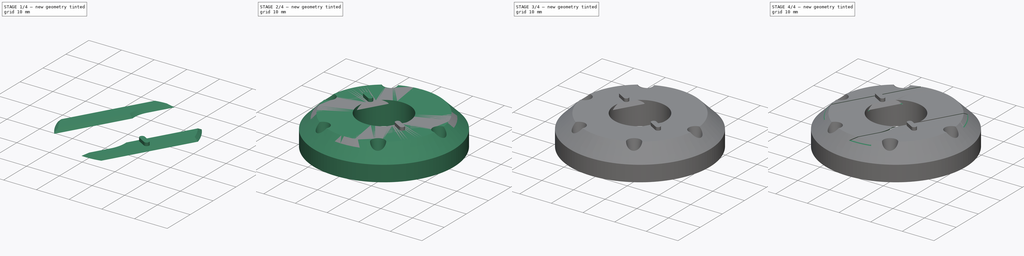
[diagram: build sequence overview — one tinted view per stage of 4, left to right]
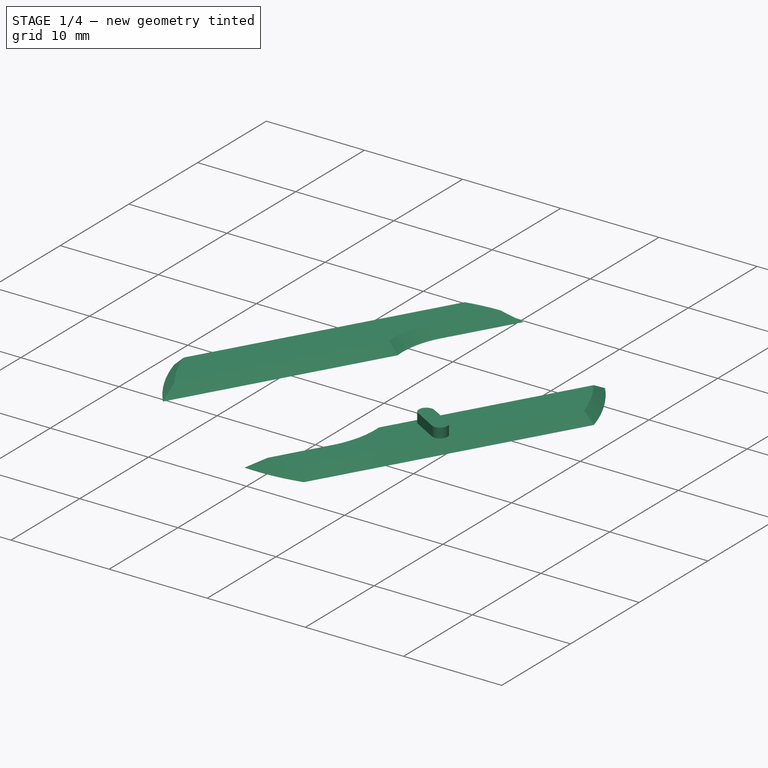
[diagram: stage 1 of 4 — iso view after this stage's code; geometry added in this stage tinted green]
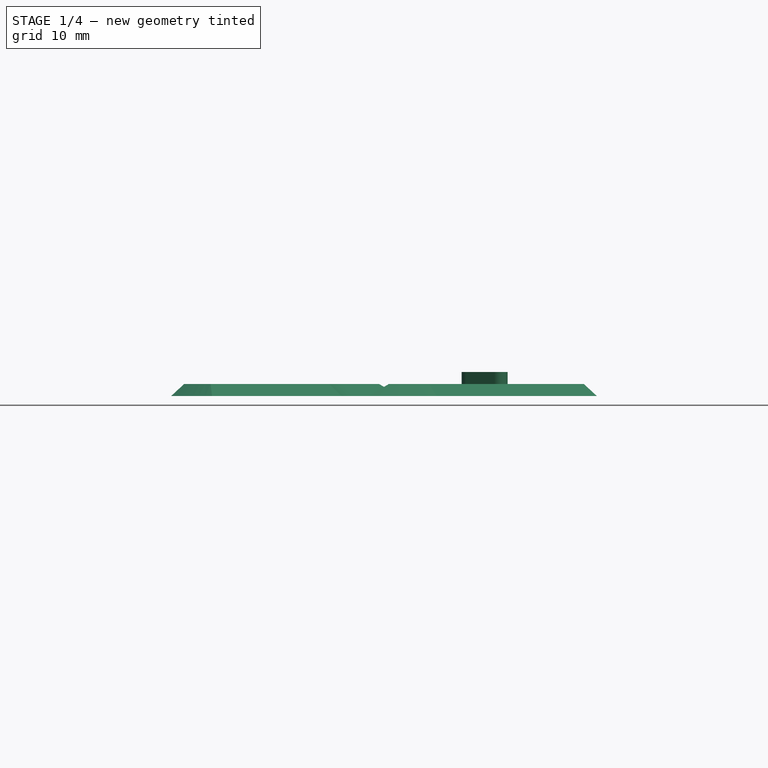
[diagram: stage 1 of 4 — front view after this stage's code; geometry added in this stage tinted green]
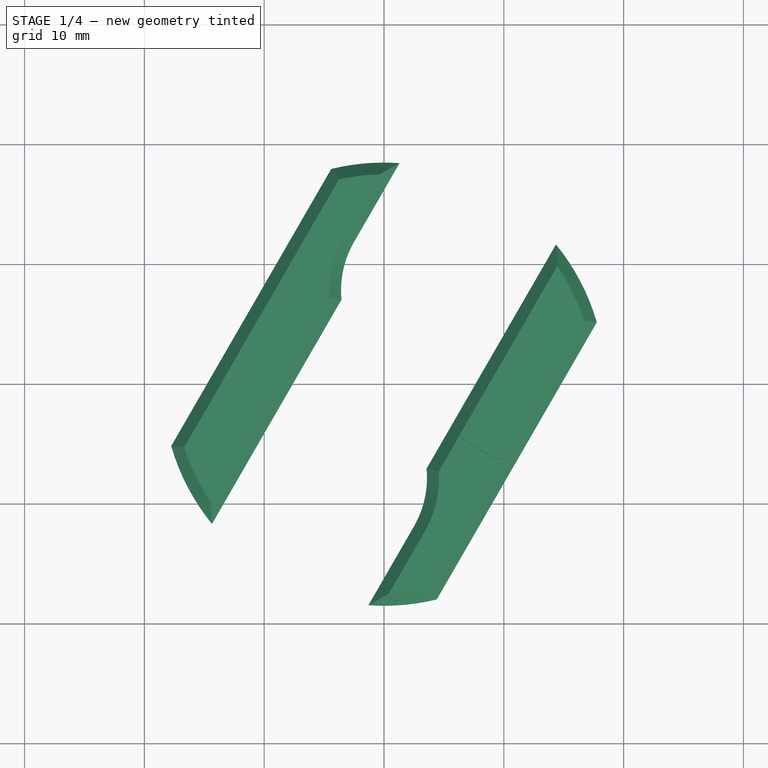
[diagram: stage 1 of 4 — top view after this stage's code; geometry added in this stage tinted green]
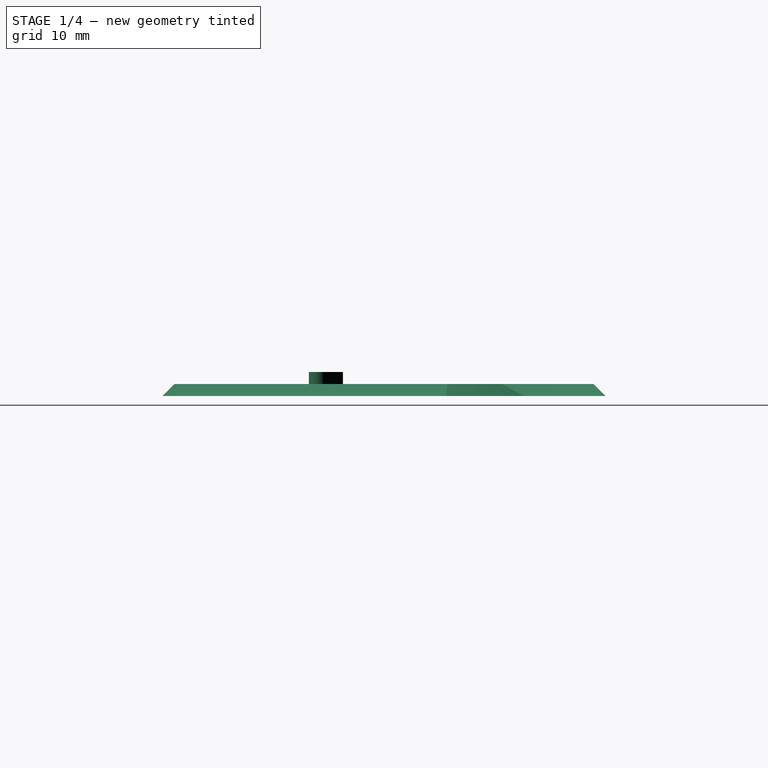
[diagram: stage 1 of 4 — right view after this stage's code; geometry added in this stage tinted green]
FCSTD DOCUMENT  (FreeCAD 0.22R37841 (Git))
Label: rotorcap
License: All rights reserved
LicenseURL: http://en.wikipedia.org/wiki/All_rights_reserved
objects: Sketcher::SketchObject×11, PartDesign::Pad×5, PartDesign::Pocket×4, PartDesign::Body×3, PartDesign::CoordinateSystem×2, PartDesign::Revolution×1, PartDesign::PolarPattern×1, App::Part×1
note: 37 computed .brp shape members not serialized (recipe doc carries the construction recipe); baked Part::Feature solids carry a one-line shape summary decoded from their .brp

FEATURE [PartDesign::Body] Body
  AllowCompound = false
  Group = -> [LCS_Origin001,Sketch,Revolution,Sketch001,Pocket,Sketch003,Sketch004,Pocket003,Pocket004,Sketch006,Pocket005,Sketch007,PolarPattern,Sketch008,Pad]
  Origin = -> Origin001
  Tip = -> Pad
FEATURE [Sketcher::SketchObject] Sketch009
  AttachmentOffset = pos=(0,0,15) rot=(0,0,1;0rad)
  AttachmentSupport = -> [XY_Plane002]
  FullyConstrained = true
  MapMode = 5
  Placement = pos=(0,0,15) rot=(0,0,1;0rad)
  sketch-geometry (8):
    g0: LineSegment StartX=-16.6807 StartY=-5.29185 StartZ=0 EndX=-3.75748 EndY=17.0918 EndZ=0
    g1: LineSegment StartX=-0.406876 StartY=17.4953 StartZ=0 EndX=-3.36587 EndY=12.3701 EndZ=0
    g2: LineSegment StartX=-14.4636 StartY=-9.85165 StartZ=0 EndX=-4.56933 EndY=7.28569 EndZ=0
    g3: ArcOfCircle CenterX=4.51496 CenterY=7.82014 CenterZ=0 NormalX=0 NormalY=0 NormalZ=1 AngleXU=0 Radius=9.1 StartAngle=2.61799 EndAngle=3.20036
    g4: Circle CenterX=0 CenterY=0 CenterZ=0 NormalX=0 NormalY=0 NormalZ=1 AngleXU=0 Radius=8.6
    g5: LineSegment StartX=0 StartY=0 StartZ=0 EndX=8.75 EndY=15.1554 EndZ=0
    g6: ArcOfCircle CenterX=0 CenterY=0 CenterZ=0 NormalX=0 NormalY=0 NormalZ=1 AngleXU=0 Radius=17.5 StartAngle=1.59405 EndAngle=1.78719
    g7: ArcOfCircle CenterX=0 CenterY=0 CenterZ=0 NormalX=0 NormalY=0 NormalZ=1 AngleXU=0 Radius=17.5 StartAngle=3.44879 EndAngle=3.73955
  constraints (23):
    c: Coincident(g3,g2)
    c: Coincident(g4,g-1)
    c: Coincident(g5,g4)
    c: Coincident(g6,g4)
    c: Coincident(g6,g1)
    c: Coincident(g6,g0)
    c: Coincident(g7,g4)
    c: Coincident(g7,g0)
    c: Coincident(g7,g2)
    c: Angle(g-1,g5) = 1.0472
    c: Tangent(g3,g1) = -1.5708
    c: PointOnObject(g5,g6)
    c: Parallel(g5,g1)
    c: Parallel(g5,g0)
    c: Parallel(g5,g2)
    c: Equal(g6,g7)
    c: Diameter(g4) = 17.2
    c: Distance(g5,g1) = 9.1
    c: Distance(g2,g5) = 7.6
    c: PointOnObject(g2,g4)
    c: PointOnObject(g3,g5)
    c: Distance(g5,g0) = 11.8
    c: Radius(g6) = 17.5
FEATURE [PartDesign::Pad] Pad001
  Direction = (0,0,1)
  Length = 1
  Length2 = 10
  Profile = -> Sketch009
  ReferenceAxis = -> Sketch009 [N_Axis]
  Reversed = true
  Suppressed = false
  TaperAngle = 45
  Type = 0
FEATURE [Sketcher::SketchObject] Sketch010
  AttachmentOffset = pos=(0,0,15) rot=(0,0,1;0rad)
  AttachmentSupport = -> [XY_Plane003]
  FullyConstrained = true
  MapMode = 5
  Placement = pos=(0,0,15) rot=(0,0,1;0rad)
  sketch-geometry (8):
    g0: LineSegment StartX=16.6807 StartY=5.29185 StartZ=0 EndX=3.75748 EndY=-17.0918 EndZ=0
    g1: LineSegment StartX=0.406876 StartY=-17.4953 StartZ=0 EndX=3.36587 EndY=-12.3701 EndZ=0
    g2: LineSegment StartX=14.4636 StartY=9.85165 StartZ=0 EndX=4.56933 EndY=-7.28569 EndZ=0
    g3: ArcOfCircle CenterX=-4.51496 CenterY=-7.82014 CenterZ=0 NormalX=0 NormalY=0 NormalZ=1 AngleXU=0 Radius=9.1 StartAngle=5.75959 EndAngle=6.34195
    g4: Circle CenterX=0 CenterY=0 CenterZ=0 NormalX=0 NormalY=0 NormalZ=1 AngleXU=0 Radius=8.6
    g5: LineSegment StartX=0 StartY=0 StartZ=0 EndX=-8.75 EndY=-15.1554 EndZ=0
    g6: ArcOfCircle CenterX=0 CenterY=0 CenterZ=0 NormalX=0 NormalY=0 NormalZ=1 AngleXU=0 Radius=17.5 StartAngle=4.73564 EndAngle=4.92879
    g7: ArcOfCircle CenterX=0 CenterY=0 CenterZ=0 NormalX=0 NormalY=0 NormalZ=1 AngleXU=0 Radius=17.5 StartAngle=0.307201 EndAngle=0.597952
  constraints (23):
    c: Coincident(g3,g2)
    c: Coincident(g4,g-1)
    c: Coincident(g5,g4)
    c: Coincident(g6,g4)
    c: Coincident(g6,g1)
    c: Coincident(g6,g0)
    c: Coincident(g7,g4)
    c: Coincident(g7,g0)
    c: Coincident(g7,g2)
    c: Tangent(g3,g1) = -1.5708
    c: PointOnObject(g5,g6)
    c: Parallel(g5,g1)
    c: Parallel(g5,g0)
    c: Parallel(g5,g2)
    c: Equal(g6,g7)
    c: Diameter(g4) = 17.2
    c: Distance(g5,g1) = 9.1
    c: Distance(g2,g5) = 7.6
    c: PointOnObject(g2,g4)
    c: PointOnObject(g3,g5)
    c: Distance(g5,g0) = 11.8
    c: Radius(g6) = 17.5
    c: Angle(g-1,g5) = 1.0472
FEATURE [PartDesign::Pad] Pad002
  Direction = (0,0,1)
  Length = 1
  Length2 = 10
  Profile = -> Sketch010
  ReferenceAxis = -> Sketch010 [N_Axis]
  Reversed = true
  Suppressed = false
  TaperAngle = 45
  Type = 0
FEATURE [PartDesign::Body] Body001
  AllowCompound = false
  Group = -> [Sketch009,Pad001,Sketch011,Pad003]
  Origin = -> Origin002
  Tip = -> Pad003
FEATURE [Sketcher::SketchObject] Sketch012
  AttachmentOffset = pos=(0,0,15) rot=(0,0,1;0rad)
  AttachmentSupport = -> [XY_Plane003]
  FullyConstrained = true
  MapMode = 5
  Placement = pos=(0,0,15) rot=(0,0,1;0rad)
  sketch-geometry (6):
    g0: Circle CenterX=0 CenterY=0 CenterZ=0 NormalX=0 NormalY=0 NormalZ=1 AngleXU=0 Radius=7.6
    g1: LineSegment StartX=0 StartY=0 StartZ=0 EndX=9.56958 EndY=-5.525 EndZ=0
    g2: ArcOfCircle CenterX=9.56958 CenterY=-5.525 CenterZ=0 NormalX=0 NormalY=0 NormalZ=1 AngleXU=0 Radius=0.75 StartAngle=4.18879 EndAngle=7.33038
    g3: ArcOfCircle CenterX=7.23131 CenterY=-4.175 CenterZ=0 NormalX=0 NormalY=0 NormalZ=1 AngleXU=0 Radius=0.75 StartAngle=1.0472 EndAngle=4.18879
    g4: LineSegment StartX=9.19458 StartY=-6.17452 StartZ=0 EndX=6.85631 EndY=-4.82452 EndZ=0
    g5: LineSegment StartX=9.94458 StartY=-4.87548 StartZ=0 EndX=7.60631 EndY=-3.52548 EndZ=0
  constraints (14):
    c: Coincident(g0,g-1)
    c: Coincident(g1,g0)
    c: Tangent(g2,g4) = 1.5708
    c: Tangent(g2,g5) = -1.5708
    c: Tangent(g3,g4) = 1.5708
    c: Tangent(g3,g5) = -1.5708
    c: Equal(g2,g3)
    c: Coincident(g2,g1)
    c: PointOnObject(g3,g1)
    c: Tangent(g3,g0)
    c: Angle(g1,g-1) = 0.523599
    c: Distance(g4,g4) = 2.7
    c: Radius(g3) = 0.75
    c: Diameter(g0) = 15.2
FEATURE [PartDesign::Pad] Pad004
  BaseFeature = -> Pad002
  Direction = (0,0,1)
  Length = 1
  Length2 = 10
  Profile = -> Sketch012
  ReferenceAxis = -> Sketch012 [N_Axis]
  Suppressed = false
  Type = 0
FEATURE [PartDesign::Body] Body002
  AllowCompound = false
  Group = -> [Sketch010,Pad002,Sketch012,Pad004]
  Origin = -> Origin003
  Tip = -> Pad004
FEATURE [App::Part] Part
  Group = -> [LCS_Origin,Body,Body001,Body002]
  Origin = -> Origin
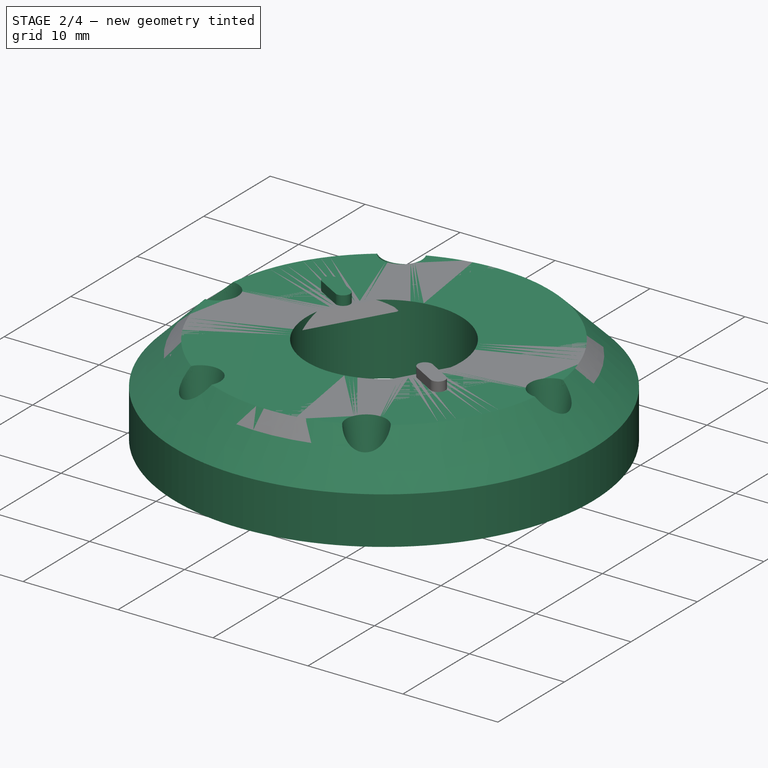
[diagram: stage 2 of 4 — iso view after this stage's code; geometry added in this stage tinted green]
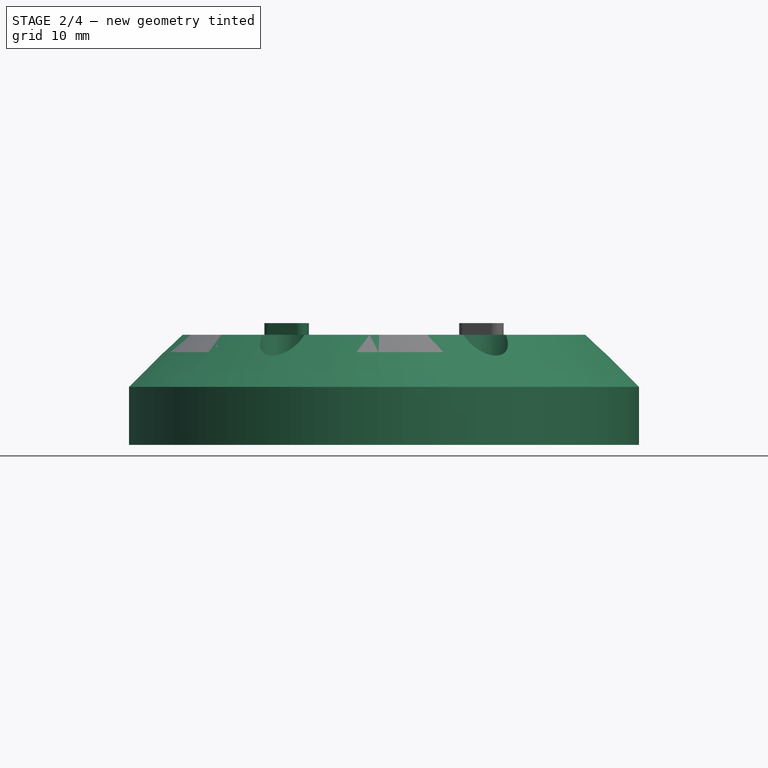
[diagram: stage 2 of 4 — front view after this stage's code; geometry added in this stage tinted green]
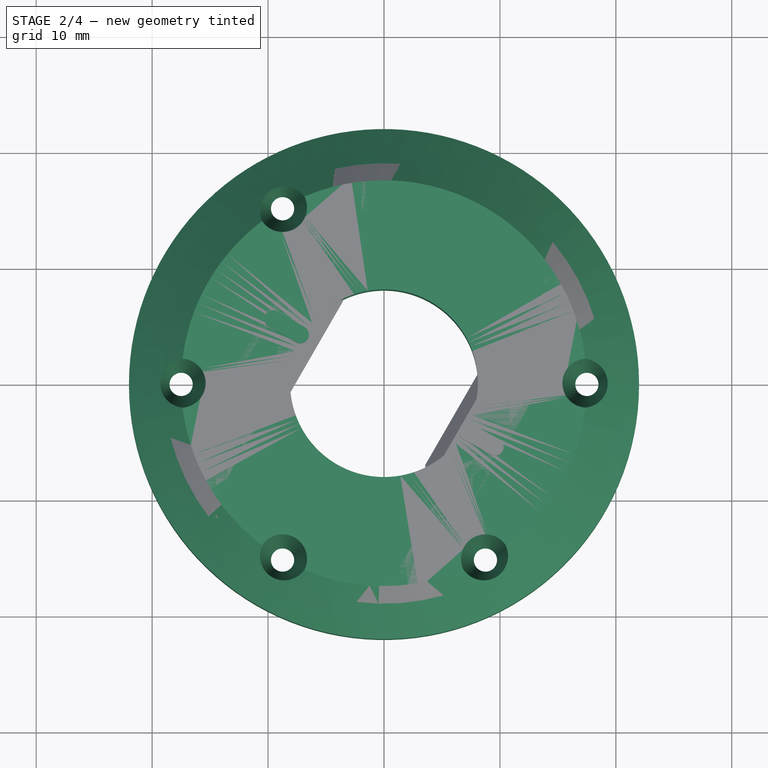
[diagram: stage 2 of 4 — top view after this stage's code; geometry added in this stage tinted green]
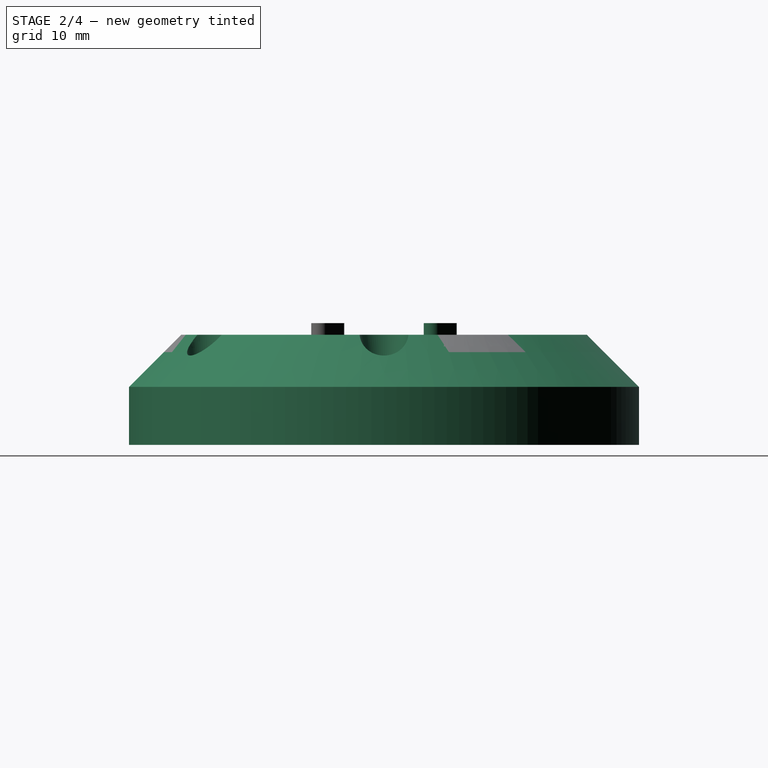
[diagram: stage 2 of 4 — right view after this stage's code; geometry added in this stage tinted green]
FEATURE [PartDesign::CoordinateSystem] LCS_Origin
  AttacherType = Attacher::AttachEngine3D
  AttachmentSupport = -> [X_Axis]
  MapMode = 2
FEATURE [PartDesign::CoordinateSystem] LCS_Origin001
  AttacherType = Attacher::AttachEngine3D
  AttachmentSupport = -> [X_Axis001]
  MapMode = 2
FEATURE [Sketcher::SketchObject] Sketch
  AttachmentSupport = -> [XZ_Plane001]
  FullyConstrained = true
  MapMode = 5
  Placement = pos=(0,0,0) rot=(1,0,0;1.5708rad)
  sketch-geometry (14):
    g0: LineSegment StartX=0 StartY=0 StartZ=0 EndX=0 EndY=15 EndZ=0
    g1: LineSegment StartX=22 StartY=5.5 StartZ=0 EndX=20 EndY=5.5 EndZ=0
    g2: LineSegment StartX=22 StartY=5.5 StartZ=0 EndX=22 EndY=10.5 EndZ=0
    g3: LineSegment StartX=17.5 StartY=15 StartZ=0 EndX=22 EndY=10.5 EndZ=0
    g4: LineSegment StartX=10.8 StartY=8.7 StartZ=0 EndX=20.25 EndY=8.7 EndZ=0
    g5: LineSegment StartX=8.1 StartY=15 StartZ=0 EndX=17.5 EndY=15 EndZ=0
    g6: LineSegment StartX=20 StartY=5.5 StartZ=0 EndX=20.25 EndY=5.75 EndZ=0
    g7: LineSegment StartX=20.25 StartY=5.75 StartZ=0 EndX=20.25 EndY=8.7 EndZ=0
    g8: LineSegment StartX=8.1 StartY=15 StartZ=0 EndX=8.1 EndY=7.5 EndZ=0
    g9: LineSegment StartX=8.1 StartY=7.5 StartZ=0 EndX=8.5 EndY=7.5 EndZ=0
    g10: LineSegment StartX=8.5 StartY=7.5 StartZ=0 EndX=8.5 EndY=8 EndZ=0
    g11: ArcOfCircle CenterX=9 CenterY=8 CenterZ=0 NormalX=0 NormalY=0 NormalZ=1 AngleXU=0 Radius=0.5 StartAngle=1.5708 EndAngle=3.14159
    g12: LineSegment StartX=9 StartY=8.5 StartZ=0 EndX=11 EndY=8.5 EndZ=0
    g13: LineSegment StartX=11 StartY=8.5 StartZ=0 EndX=10.8 EndY=8.7 EndZ=0
  constraints (44):
    c: Coincident(g0,g-1)
    c: PointOnObject(g0,g-2)
    c: Horizontal(g1)
    c: DistanceX(g0,g1) = 20
    c: DistanceY(g0,g1) = 5.5
    c: DistanceX(g0,g1) = 22
    c: Horizontal(g5,g0)
    c: Coincident(g2,g1)
    c: Coincident(g3,g2)
    c: Vertical(g2)
    c: Horizontal(g4)
    c: Horizontal(g5)
    c: DistanceY(g-1,g4) = 8.7
    c: DistanceY(g-1,g2) = 10.5
    c: DistanceY(g2,g2) = 5
    c: Coincident(g5,g3)
    c: Angle(g2,g3) = 0.785398
    c: DistanceY(g-1,g5) = 15
    c: DistanceX(g-1,g3) = 17.5
    c: Coincident(g6,g1)
    c: Coincident(g7,g6)
    c: Coincident(g7,g4)
    c: Vertical(g7)
    c: Angle(g1,g6) = 0.785398
    c: DistanceX(g-1,g4) = 20.25
    c: Distance(g1,g4) = 3.2
    c: Coincident(g8,g5)
    c: Vertical(g8)
    c: DistanceX(g-1,g8) = 8.1
    c: Coincident(g9,g8)
    c: Horizontal(g9)
    c: Coincident(g10,g9)
    c: Vertical(g10)
    c: Horizontal(g12)
    c: Coincident(g13,g12)
    c: Coincident(g13,g4)
    c: DistanceX(g-1,g12) = 11
    c: Angle(g13,g4) = 0.785398
    c: DistanceY(g-1,g11) = 8.5
    c: Radius(g11) = 0.5
    c: DistanceX(g-1,g9) = 8.5
    c: Distance(g12,g9) = 1
    c: Tangent(g12,g11) = 1.5708
    c: Tangent(g11,g10) = 1.5708
FEATURE [PartDesign::Revolution] Revolution
  Angle = 360
  Angle2 = 60
  Axis = (0,2e-16,1)
  Base = (0,0,0)
  Placement = pos=(0,0,0) rot=(1,0,0;1.5708rad)
  Profile = -> Sketch
  ReferenceAxis = -> Sketch [V_Axis]
  Reversed = true
  Suppressed = false
  Type = 0
FEATURE [Sketcher::SketchObject] Sketch001
  AttachmentOffset = pos=(0,0,8.7) rot=(0,0,1;0rad)
  AttachmentSupport = -> [XY_Plane001]
  FullyConstrained = true
  MapMode = 5
  Placement = pos=(0,0,8.7) rot=(0,0,1;0rad)
  sketch-geometry (13):
    g0: LineSegment StartX=-8.75 StartY=15.1554 StartZ=0 EndX=-17.5 EndY=0 EndZ=0
    g1: LineSegment StartX=-17.5 StartY=0 StartZ=0 EndX=-8.75 EndY=-15.1554 EndZ=0
    g2: LineSegment StartX=-8.75 StartY=-15.1554 StartZ=0 EndX=8.75 EndY=-15.1554 EndZ=0
    g3: LineSegment StartX=8.75 StartY=-15.1554 StartZ=0 EndX=17.5 EndY=0 EndZ=0
    g4: LineSegment StartX=17.5 StartY=0 StartZ=0 EndX=8.75 EndY=15.1554 EndZ=0
    g5: LineSegment StartX=8.75 StartY=15.1554 StartZ=0 EndX=-8.75 EndY=15.1554 EndZ=0
    g6: Circle CenterX=0 CenterY=0 CenterZ=0 NormalX=0 NormalY=0 NormalZ=1 AngleXU=0 Radius=17.5
    g7: Circle CenterX=-8.75 CenterY=-15.1554 CenterZ=0 NormalX=0 NormalY=0 NormalZ=1 AngleXU=0 Radius=1
    g8: Circle CenterX=-17.5 CenterY=0 CenterZ=0 NormalX=0 NormalY=0 NormalZ=1 AngleXU=0 Radius=1
    g9: Circle CenterX=-8.75 CenterY=15.1554 CenterZ=0 NormalX=0 NormalY=0 NormalZ=1 AngleXU=0 Radius=1
    g10: Circle CenterX=8.75 CenterY=15.1554 CenterZ=0 NormalX=0 NormalY=0 NormalZ=1 AngleXU=0 Radius=1
    g11: Circle CenterX=17.5 CenterY=0 CenterZ=0 NormalX=0 NormalY=0 NormalZ=1 AngleXU=0 Radius=1
    g12: Circle CenterX=8.75 CenterY=-15.1554 CenterZ=0 NormalX=0 NormalY=0 NormalZ=1 AngleXU=0 Radius=1
  constraints (28):
    c: Coincident(g0,g1)
    c: Coincident(g1,g2)
    c: Coincident(g2,g3)
    c: Coincident(g3,g4)
    c: Coincident(g4,g5)
    c: Coincident(g5,g0)
    c: Equal(g0, g1-g5) x5
    c: PointOnObject(g0,g6)
    c: PointOnObject(g1,g6)
    c: PointOnObject(g2,g6)
    c: PointOnObject(g3,g6)
    c: PointOnObject(g4,g6)
    c: Coincident(g6,g-1)
    c: Coincident(g7,g1)
    c: Coincident(g8,g0)
    c: Coincident(g9,g0)
    c: Coincident(g10,g4)
    c: Coincident(g11,g3)
    c: Coincident(g12,g2)
    c: Equal(g8,g9)
    c: Equal(g9,g10)
    c: Equal(g10,g11)
    c: Equal(g11,g12)
    c: Equal(g12,g7)
    c: Diameter(g6) = 35
    c: Diameter(g8) = 2
    c: PointOnObject(g0,g6)
    c: PointOnObject(g0,g-1)
FEATURE [PartDesign::Pocket] Pocket
  BaseFeature = -> Revolution
  Direction = (0,0,-1)
  Length = 10
  Length2 = 5
  Placement = pos=(0,0,0) rot=(1,0,0;1.5708rad)
  Profile = -> Sketch001
  ReferenceAxis = -> Sketch001 [N_Axis]
  Reversed = true
  Suppressed = false
  TaperAngle = 10
  Type = 0
FEATURE [Sketcher::SketchObject] Sketch011
  AttachmentOffset = pos=(0,0,15) rot=(0,0,1;0rad)
  AttachmentSupport = -> [XY_Plane002]
  FullyConstrained = true
  MapMode = 5
  Placement = pos=(0,0,15) rot=(0,0,1;0rad)
  sketch-geometry (6):
    g0: ArcOfCircle CenterX=-9.56958 CenterY=5.525 CenterZ=0 NormalX=0 NormalY=0 NormalZ=1 AngleXU=0 Radius=0.75 StartAngle=1.0472 EndAngle=4.18879
    g1: ArcOfCircle CenterX=-7.23131 CenterY=4.175 CenterZ=0 NormalX=0 NormalY=0 NormalZ=1 AngleXU=0 Radius=0.75 StartAngle=4.18879 EndAngle=7.33038
    g2: LineSegment StartX=-9.19458 StartY=6.17452 StartZ=0 EndX=-6.85631 EndY=4.82452 EndZ=0
    g3: LineSegment StartX=-9.94458 StartY=4.87548 StartZ=0 EndX=-7.60631 EndY=3.52548 EndZ=0
    g4: LineSegment StartX=0 StartY=0 StartZ=0 EndX=-9.56958 EndY=5.525 EndZ=0
    g5: Circle CenterX=0 CenterY=0 CenterZ=0 NormalX=0 NormalY=0 NormalZ=1 AngleXU=0 Radius=7.6
  constraints (14):
    c: Tangent(g0,g2) = 1.5708
    c: Tangent(g0,g3) = -1.5708
    c: Tangent(g1,g2) = 1.5708
    c: Tangent(g1,g3) = -1.5708
    c: Equal(g0,g1)
    c: Coincident(g4,g-1)
    c: Coincident(g0,g4)
    c: PointOnObject(g1,g4)
    c: Angle(g4,g-1) = 0.523599
    c: Radius(g1) = 0.75
    c: Coincident(g5,g4)
    c: Tangent(g5,g1)
    c: Diameter(g5) = 15.2
    c: Distance(g2,g2) = 2.7
FEATURE [PartDesign::Pad] Pad003
  BaseFeature = -> Pad001
  Direction = (0,0,1)
  Length = 1
  Length2 = 10
  Profile = -> Sketch011
  ReferenceAxis = -> Sketch011 [N_Axis]
  Suppressed = false
  Type = 0
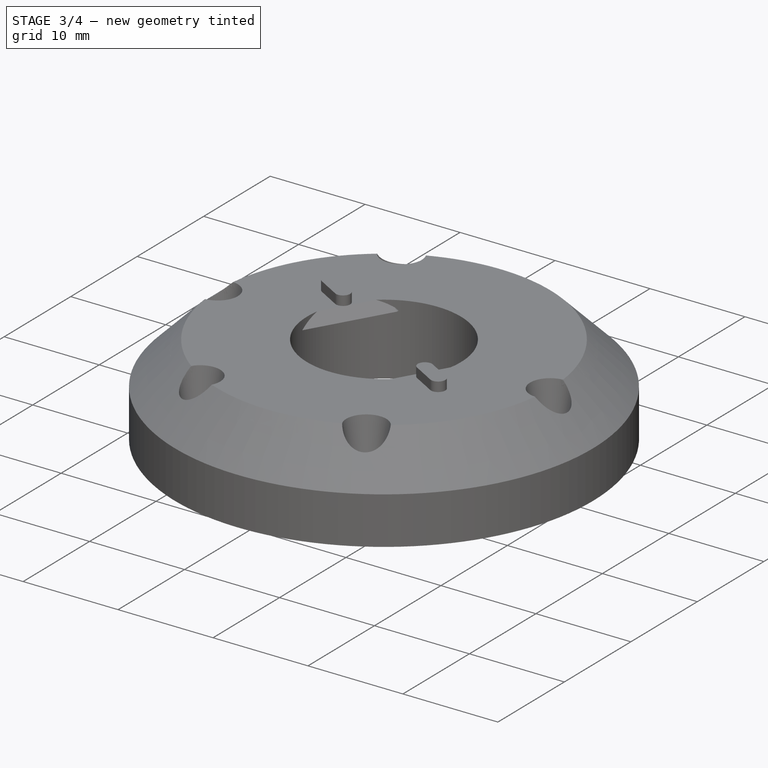
[diagram: stage 3 of 4 — iso view after this stage's code; geometry added in this stage tinted green]
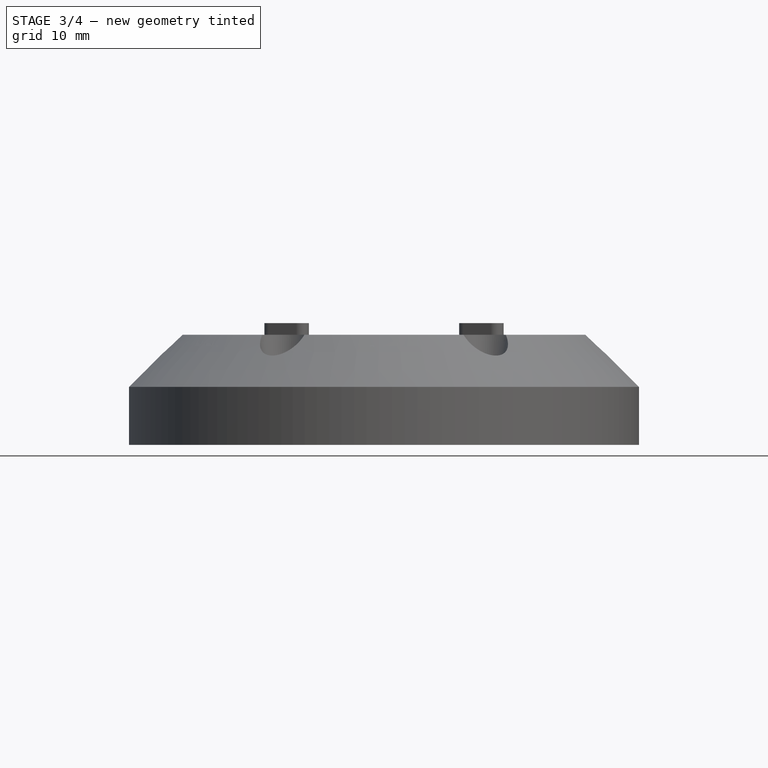
[diagram: stage 3 of 4 — front view after this stage's code; geometry added in this stage tinted green]
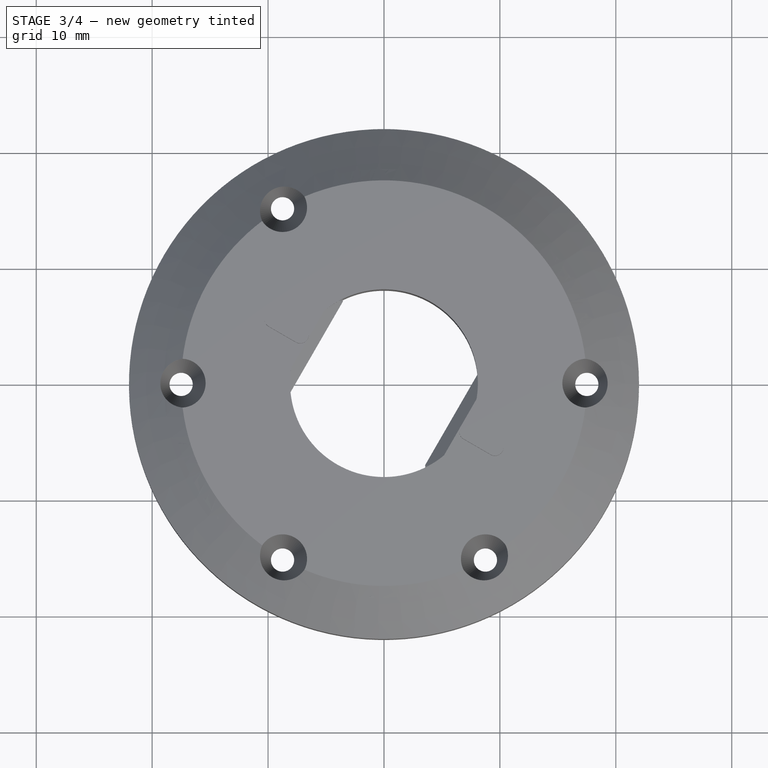
[diagram: stage 3 of 4 — top view after this stage's code; geometry added in this stage tinted green]
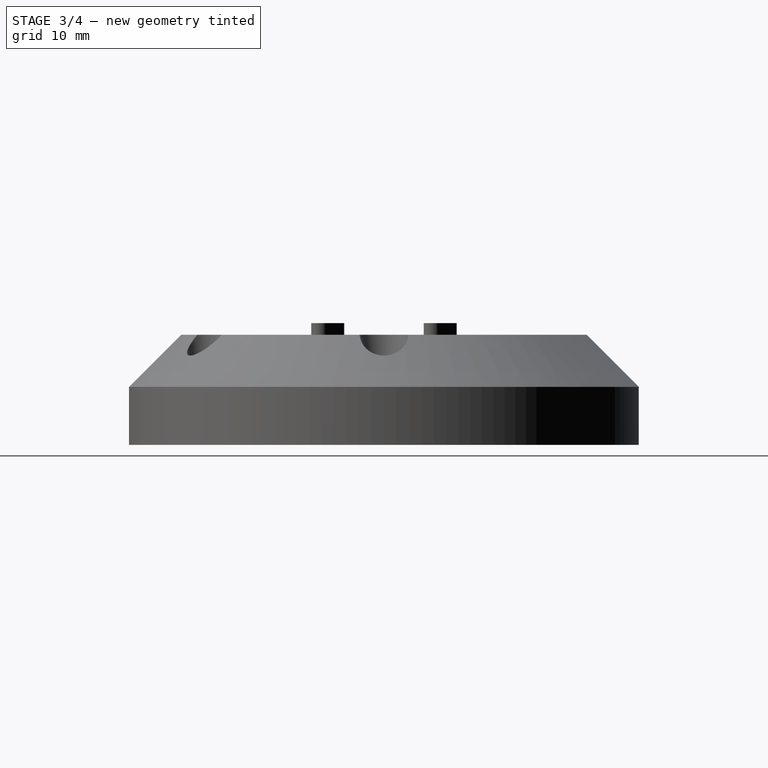
[diagram: stage 3 of 4 — right view after this stage's code; geometry added in this stage tinted green]
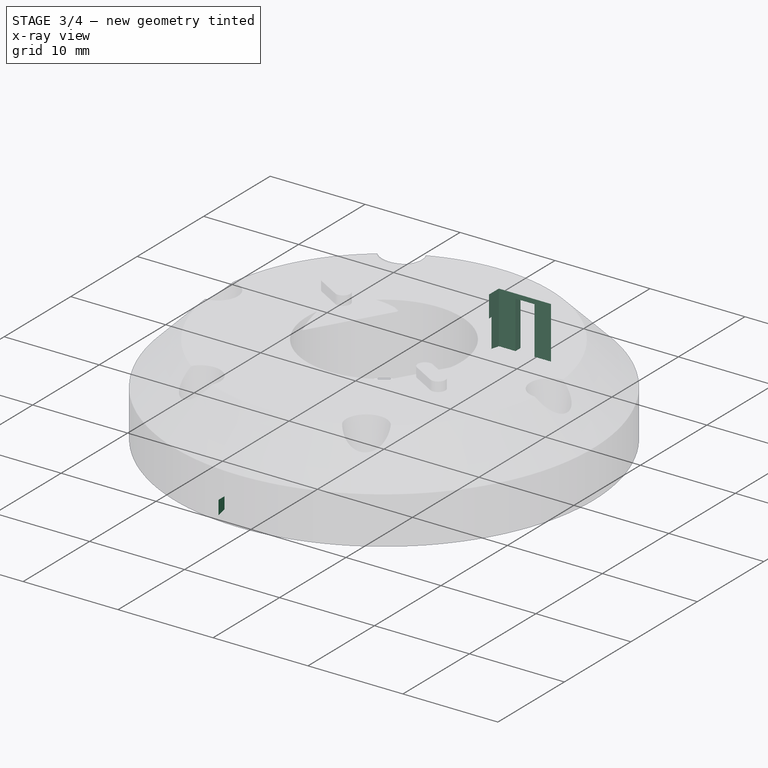
[diagram: stage 3 of 4 — x-ray composite at the iso view; earlier geometry ghosted, this stage's added geometry solid]
FEATURE [Sketcher::SketchObject] Sketch003
  AttachmentOffset = pos=(0,0,5.5) rot=(0,0,1;0rad)
  AttachmentSupport = -> [XY_Plane001]
  FullyConstrained = true
  MapMode = 5
  Placement = pos=(0,0,5.5) rot=(0,0,1;0rad)
  sketch-geometry (23):
    g0: ArcOfCircle CenterX=0 CenterY=0 CenterZ=0 NormalX=0 NormalY=0 NormalZ=1 AngleXU=0 Radius=20.5 StartAngle=2.26597 EndAngle=2.97002
    g1: ArcOfCircle CenterX=0 CenterY=0 CenterZ=0 NormalX=0 NormalY=0 NormalZ=1 AngleXU=0 Radius=16 StartAngle=2.31493 EndAngle=2.92106
    g2: LineSegment StartX=-15.6125 StartY=3.5 StartZ=0 EndX=-20.199 EndY=3.5 EndZ=0
    g3: LineSegment StartX=-10.8373 StartY=11.7708 StartZ=0 EndX=-13.1306 EndY=15.7429 EndZ=0
    g4: LineSegment StartX=0 StartY=0 StartZ=0 EndX=-17.7535 EndY=10.25 EndZ=0
    g5: GeomPoint X=-6.06218 Y=3.5 Z=0
    g6: ArcOfCircle CenterX=0 CenterY=0 CenterZ=0 NormalX=0 NormalY=0 NormalZ=1 AngleXU=0 Radius=16 StartAngle=3.36213 EndAngle=3.96826
    g7: ArcOfCircle CenterX=0 CenterY=0 CenterZ=0 NormalX=0 NormalY=0 NormalZ=1 AngleXU=0 Radius=20.5 StartAngle=3.31316 EndAngle=4.01722
    g8: LineSegment StartX=-20.199 StartY=-3.5 StartZ=0 EndX=-15.6125 EndY=-3.5 EndZ=0
    g9: LineSegment StartX=-10.8373 StartY=-11.7708 StartZ=0 EndX=-13.1306 EndY=-15.7429 EndZ=0
    g10: LineSegment StartX=-1 StartY=25 StartZ=0 EndX=-1 EndY=20 EndZ=0
    g11: LineSegment StartX=-1 StartY=20 StartZ=0 EndX=1 EndY=20 EndZ=0
    g12: LineSegment StartX=1 StartY=20 StartZ=0 EndX=1 EndY=25 EndZ=0
    g13: LineSegment StartX=1 StartY=25 StartZ=0 EndX=-1 EndY=25 EndZ=0
    g14: GeomPoint X=0 Y=22.5 Z=0
    g15: ArcOfCircle CenterX=0 CenterY=0 CenterZ=0 NormalX=0 NormalY=0 NormalZ=1 AngleXU=0 Radius=20.5 StartAngle=0.171572 EndAngle=0.875625
    g16: ArcOfCircle CenterX=0 CenterY=0 CenterZ=0 NormalX=0 NormalY=0 NormalZ=1 AngleXU=0 Radius=16 StartAngle=0.220533 EndAngle=0.826664
    g17: LineSegment StartX=15.6125 StartY=3.5 StartZ=0 EndX=20.199 EndY=3.5 EndZ=0
    g18: LineSegment StartX=10.8373 StartY=11.7708 StartZ=0 EndX=13.1306 EndY=15.7429 EndZ=0
    g19: ArcOfCircle CenterX=0 CenterY=0 CenterZ=0 NormalX=0 NormalY=0 NormalZ=1 AngleXU=0 Radius=16 StartAngle=5.45652 EndAngle=6.06265
    g20: ArcOfCircle CenterX=0 CenterY=0 CenterZ=0 NormalX=0 NormalY=0 NormalZ=1 AngleXU=0 Radius=20.5 StartAngle=5.40756 EndAngle=6.11161
    g21: LineSegment StartX=20.199 StartY=-3.5 StartZ=0 EndX=15.6125 EndY=-3.5 EndZ=0
    g22: LineSegment StartX=10.8373 StartY=-11.7708 StartZ=0 EndX=13.1306 EndY=-15.7429 EndZ=0
  constraints (66):
    c: Coincident(g0,g-1)
    c: Coincident(g1,g0)
    c: Coincident(g2,g0)
    c: Coincident(g3,g0)
    c: Horizontal(g2)
    c: Coincident(g4,g0)
    c: PointOnObject(g4,g0)
    c: Angle(g-1,g4) = 2.61799
    c: Angle(g3,g4) = 0.523599
    c: PointOnObject(g5,g4)
    c: PointOnObject(g5,g2)
    c: PointOnObject(g5,g3)
    c: Radius(g0) = 20.5
    c: DistanceY(g0,g0) = 3.5
    c: Radius(g1) = 16
    c: Coincident(g2,g1)
    c: Coincident(g1,g3)
    c: Coincident(g6,g0)
    c: Coincident(g7,g0)
    c: Coincident(g8,g7)
    c: Horizontal(g8)
    c: Coincident(g6,g8)
    c: Equal(g0,g7)
    c: Equal(g1,g6)
    c: Coincident(g9,g6)
    c: Coincident(g9,g7)
    c: Vertical(g1,g6)
    c: Vertical(g0,g7)
    c: Coincident(g10,g11)
    c: Coincident(g11,g12)
    c: Coincident(g12,g13)
    c: Coincident(g13,g10)
    c: Vertical(g10)
    c: Vertical(g12)
    c: Horizontal(g11)
    c: Horizontal(g13)
    c: Symmetric(g12,g10,g14)
    c: PointOnObject(g14,g-2)
    c: Distance(g13,g13) = 2
    c: Distance(g0,g11) = 20
    c: DistanceY(g12,g12) = 5
    c: Vertical(g0,g7)
    c: Coincident(g16,g15)
    c: Coincident(g17,g15)
    c: Coincident(g18,g15)
    c: Horizontal(g17)
    c: Radius(g15) = 20.5
    c: Radius(g16) = 16
    c: Coincident(g17,g16)
    c: Coincident(g16,g18)
    c: Coincident(g19,g15)
    c: Coincident(g20,g15)
    c: Coincident(g21,g20)
    c: Horizontal(g21)
    c: Coincident(g19,g21)
    c: Equal(g15,g20)
    c: Equal(g16,g19)
    c: Coincident(g22,g19)
    c: Coincident(g22,g20)
    c: Coincident(g15,g0)
    c: Horizontal(g16,g1)
    c: Horizontal(g19,g6)
    c: Horizontal(g16,g1)
    c: Horizontal(g6,g19)
    c: Horizontal(g20,g7)
    c: Horizontal(g15,g0)
FEATURE [Sketcher::SketchObject] Sketch004
  AttachmentSupport = -> [YZ_Plane001]
  FullyConstrained = true
  MapMode = 5
  Placement = pos=(0,0,0) rot=(0.57735,0.57735,0.57735;2.0944rad)
  sketch-geometry (9):
    g0: LineSegment StartX=19.7 StartY=11 StartZ=0 EndX=21.2 EndY=11 EndZ=0
    g1: LineSegment StartX=21.2 StartY=5.5 StartZ=0 EndX=19.7 EndY=5.5 EndZ=0
    g2: LineSegment StartX=19.7 StartY=5.5 StartZ=0 EndX=19.7 EndY=11 EndZ=0
    g3: LineSegment StartX=21.2 StartY=11 StartZ=0 EndX=21.2 EndY=5.5 EndZ=0
    g4: LineSegment StartX=-21 StartY=7 StartZ=0 EndX=-21 EndY=5.5 EndZ=0
    g5: LineSegment StartX=-21 StartY=5.5 StartZ=0 EndX=-19 EndY=5.5 EndZ=0
    g6: LineSegment StartX=-19 StartY=5.5 StartZ=0 EndX=-17 EndY=5.5 EndZ=0
    g7: LineSegment StartX=-17 StartY=5.5 StartZ=0 EndX=-17 EndY=7 EndZ=0
    g8: LineSegment StartX=-21 StartY=7 StartZ=0 EndX=-17 EndY=7 EndZ=0
  constraints (27):
    c: Coincident(g1,g2)
    c: Coincident(g2,g0)
    c: Horizontal(g0)
    c: Horizontal(g1)
    c: Vertical(g2)
    c: DistanceX(g-1,g1) = 19.7
    c: DistanceY(g-1,g1) = 5.5
    c: DistanceY(g2,g2) = 5.5
    c: Coincident(g3,g0)
    c: Vertical(g3)
    c: Vertical(g4)
    c: Coincident(g5,g4)
    c: Horizontal(g5)
    c: Horizontal(g6)
    c: Coincident(g7,g6)
    c: Vertical(g7)
    c: DistanceX(g4,g-1) = 21
    c: Coincident(g6,g5)
    c: Equal(g5,g6)
    c: DistanceX(g5,g-1) = 19
    c: Horizontal(g4,g1)
    c: DistanceY(g7,g7) = 1.5
    c: Coincident(g8,g4)
    c: Horizontal(g8)
    c: Coincident(g7,g8)
    c: Coincident(g3,g1)
    c: DistanceX(g0,g0) = 1.5
FEATURE [PartDesign::Pocket] Pocket003  label="Wells"
  BaseFeature = -> Pocket
  Direction = (-1,0,0)
  Length = 5.5
  Length2 = 5
  Midplane = true
  Placement = pos=(0,0,0) rot=(1,0,0;1.5708rad)
  Profile = -> Sketch004
  ReferenceAxis = -> Sketch004 [N_Axis]
  Suppressed = false
  Type = 0
FEATURE [PartDesign::Pocket] Pocket004  label="Window"
  BaseFeature = -> Pocket003
  Direction = (0,0,-1)
  Length = 5
  Length2 = 5
  Placement = pos=(0,0,0) rot=(1,0,0;1.5708rad)
  Profile = -> Sketch003
  ReferenceAxis = -> Sketch003 [N_Axis]
  Reversed = true
  Suppressed = false
  Type = 0
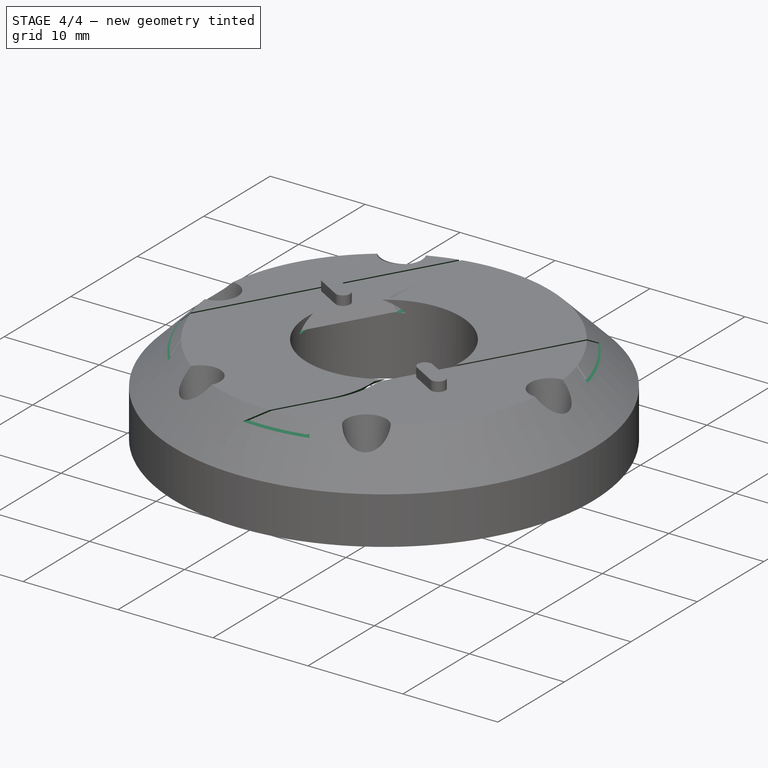
[diagram: stage 4 of 4 — iso view after this stage's code; geometry added in this stage tinted green]
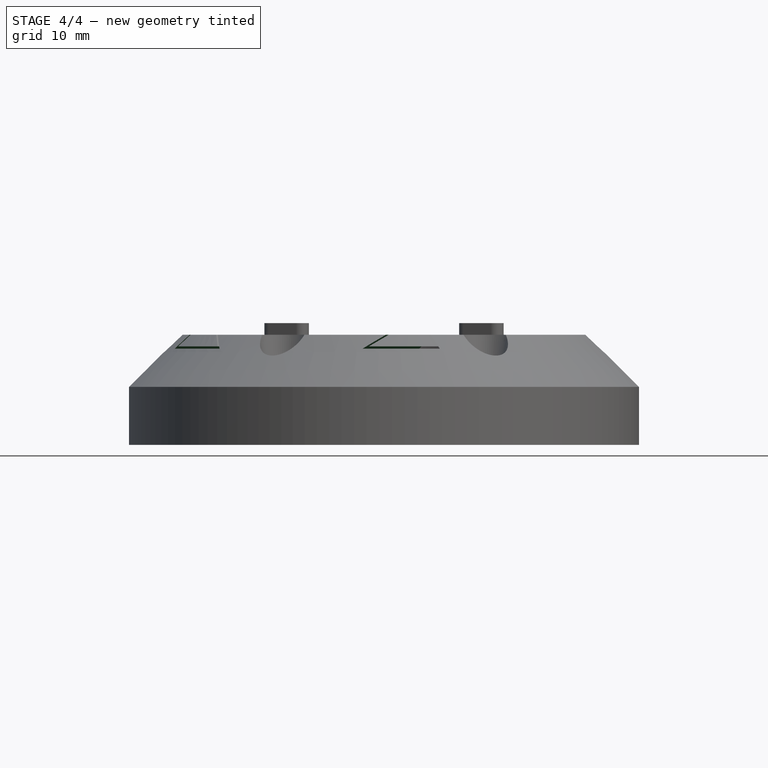
[diagram: stage 4 of 4 — front view after this stage's code; geometry added in this stage tinted green]
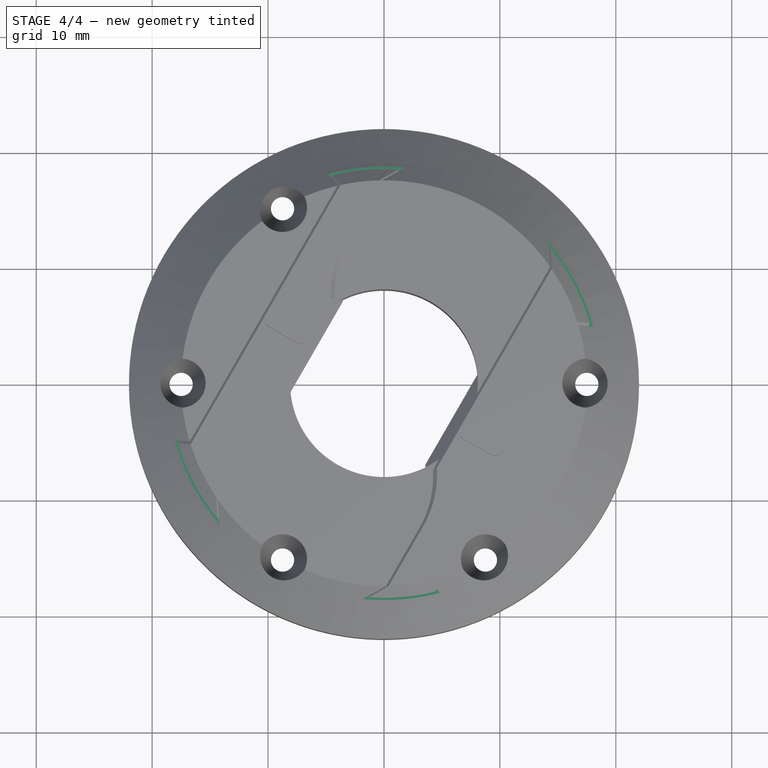
[diagram: stage 4 of 4 — top view after this stage's code; geometry added in this stage tinted green]
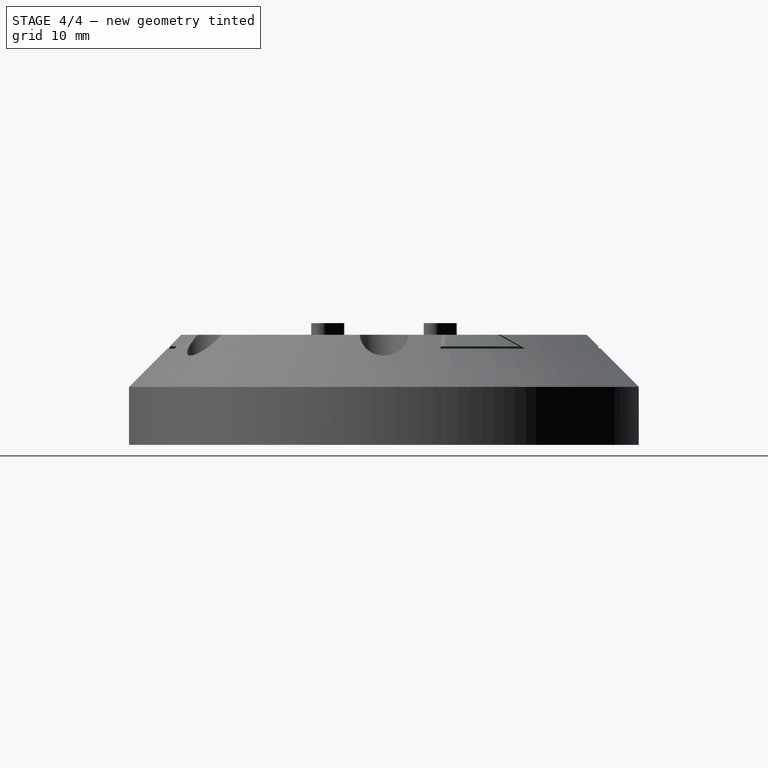
[diagram: stage 4 of 4 — right view after this stage's code; geometry added in this stage tinted green]
FEATURE [Sketcher::SketchObject] Sketch006
  AttachmentOffset = pos=(0,0,15) rot=(0,0,1;0rad)
  AttachmentSupport = -> [XY_Plane001]
  FullyConstrained = true
  MapMode = 5
  Placement = pos=(0,0,15) rot=(0,0,1;0rad)
  sketch-geometry (8):
    g0: LineSegment StartX=0 StartY=0 StartZ=0 EndX=10 EndY=17.3205 EndZ=0
    g1: LineSegment StartX=-3.04439 StartY=12.527 StartZ=0 EndX=1.24768 EndY=19.961 EndZ=0
    g2: LineSegment StartX=-4.2177 StartY=7.49473 StartZ=0 EndX=-15.6989 EndY=-12.3913 EndZ=0
    g3: LineSegment StartX=-2.3923 StartY=19.8564 StartZ=0 EndX=-18.3923 EndY=-7.85641 EndZ=0
    g4: ArcOfCircle CenterX=0 CenterY=0 CenterZ=0 NormalX=0 NormalY=0 NormalZ=1 AngleXU=0 Radius=20 StartAngle=1.50837 EndAngle=1.6907
    g5: ArcOfCircle CenterX=0 CenterY=0 CenterZ=0 NormalX=0 NormalY=0 NormalZ=1 AngleXU=0 Radius=20 StartAngle=3.54529 EndAngle=3.80978
    g6: Circle CenterX=0 CenterY=0 CenterZ=0 NormalX=0 NormalY=0 NormalZ=1 AngleXU=0 Radius=8.6
    g7: ArcOfCircle CenterX=4.66324 CenterY=8.07696 CenterZ=0 NormalX=0 NormalY=0 NormalZ=1 AngleXU=0 Radius=8.9 StartAngle=2.61799 EndAngle=3.20706
  constraints (23):
    c: Angle(g-1,g0) = 1.0472
    c: Parallel(g0,g1)
    c: Parallel(g0,g2)
    c: Parallel(g3,g0)
    c: Distance(g1,g0) = 8.9
    c: Coincident(g0,g-1)
    c: Coincident(g4,g0)
    c: Coincident(g4,g1)
    c: Coincident(g5,g0)
    c: Coincident(g5,g2)
    c: Coincident(g5,g3)
    c: Coincident(g3,g4)
    c: Distance(g0,g2) = 7.4
    c: Equal(g4,g5)
    c: Distance(g0,g3) = 12
    c: PointOnObject(g0,g4)
    c: Distance(g0,g0) = 20
    c: Coincident(g6,g0)
    c: Diameter(g6) = 17.2
    c: PointOnObject(g7,g0)
    c: Coincident(g7,g2)
    c: Tangent(g7,g1) = 1.5708
    c: PointOnObject(g2,g6)
FEATURE [PartDesign::Pocket] Pocket005
  BaseFeature = -> Pocket004
  Direction = (0,0,-1)
  Length = 1.2
  Length2 = 5
  Placement = pos=(0,0,0) rot=(1,0,0;1.5708rad)
  Profile = -> Sketch006
  ReferenceAxis = -> Sketch006 [N_Axis]
  Suppressed = false
  TaperAngle = 45
  Type = 0
FEATURE [Sketcher::SketchObject] Sketch007
  AttachmentSupport = -> [XY_Plane001]
  FullyConstrained = false
  MapMode = 5
  sketch-geometry (2):
    g0: Circle CenterX=0 CenterY=0 CenterZ=0 NormalX=0 NormalY=0 NormalZ=1 AngleXU=0 Radius=8.1
    g1: LineSegment StartX=0 StartY=0 StartZ=0 EndX=-12.8083 EndY=-22.1846 EndZ=0
  constraints (4):
    c: Coincident(g0,g-1)
    c: Coincident(g1,g0)
    c: Angle(g-1,g1) = 1.0472
    c: Diameter(g0) = 16.2
FEATURE [PartDesign::PolarPattern] PolarPattern
  Angle = 360
  Axis = -> Sketch006 [N_Axis]
  BaseFeature = -> Pocket005
  Mode = 0
  Occurrences = 2
  Offset = 120
  Originals = -> [Pocket005]
  Placement = pos=(0,0,0) rot=(1,0,0;1.5708rad)
  Suppressed = false
  TransformMode = 0
FEATURE [Sketcher::SketchObject] Sketch008
  AttachmentSupport = -> [YZ_Plane001]
  FullyConstrained = true
  MapMode = 5
  Placement = pos=(0,0,0) rot=(0.57735,0.57735,0.57735;2.0944rad)
  sketch-geometry (6):
    g0: ArcOfCircle CenterX=20 CenterY=6.5 CenterZ=0 NormalX=0 NormalY=0 NormalZ=1 AngleXU=0 Radius=0.4 StartAngle=3.14159 EndAngle=6.28319
    g1: LineSegment StartX=19.6 StartY=6.5 StartZ=0 EndX=19.6 EndY=8.3 EndZ=0
    g2: LineSegment StartX=20.4 StartY=6.5 StartZ=0 EndX=20.4 EndY=11 EndZ=0
    g3: ArcOfCircle CenterX=19.2 CenterY=8.3 CenterZ=0 NormalX=0 NormalY=0 NormalZ=1 AngleXU=0 Radius=0.4 StartAngle=2.1e-15 EndAngle=1.5708
    g4: LineSegment StartX=19.2 StartY=8.7 StartZ=0 EndX=19.2 EndY=11 EndZ=0
    g5: LineSegment StartX=19.2 StartY=11 StartZ=0 EndX=20.4 EndY=11 EndZ=0
  constraints (17):
    c: Vertical(g1)
    c: Vertical(g2)
    c: Tangent(g3,g1) = -1.5708
    c: Tangent(g1,g0) = 1.5708
    c: Tangent(g2,g0) = -1.5708
    c: Radius(g0) = 0.4
    c: DistanceY(g-1,g0) = 6.5
    c: Equal(g0,g3)
    c: Distance(g3,g-1) = 8.7
    c: DistanceX(g-1,g0) = 20
    c: Coincident(g4,g3)
    c: Vertical(g4)
    c: Coincident(g5,g4)
    c: Horizontal(g5)
    c: Coincident(g5,g2)
    c: PointOnObject(g3,g4)
    c: DistanceY(g-1,g2) = 11
FEATURE [PartDesign::Pad] Pad
  BaseFeature = -> PolarPattern
  Direction = (1,0,0)
  Length = 13
  Length2 = 10
  Midplane = true
  Placement = pos=(0,0,0) rot=(1,0,0;1.5708rad)
  Profile = -> Sketch008
  ReferenceAxis = -> Sketch008 [N_Axis]
  Suppressed = false
  Type = 0
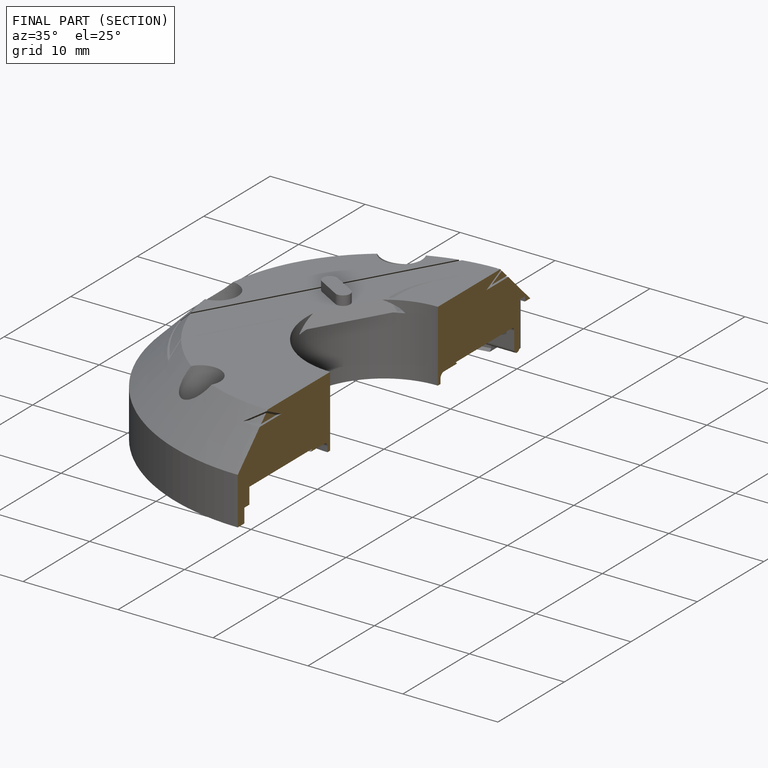
[diagram: finished part — half-section view (interior)]
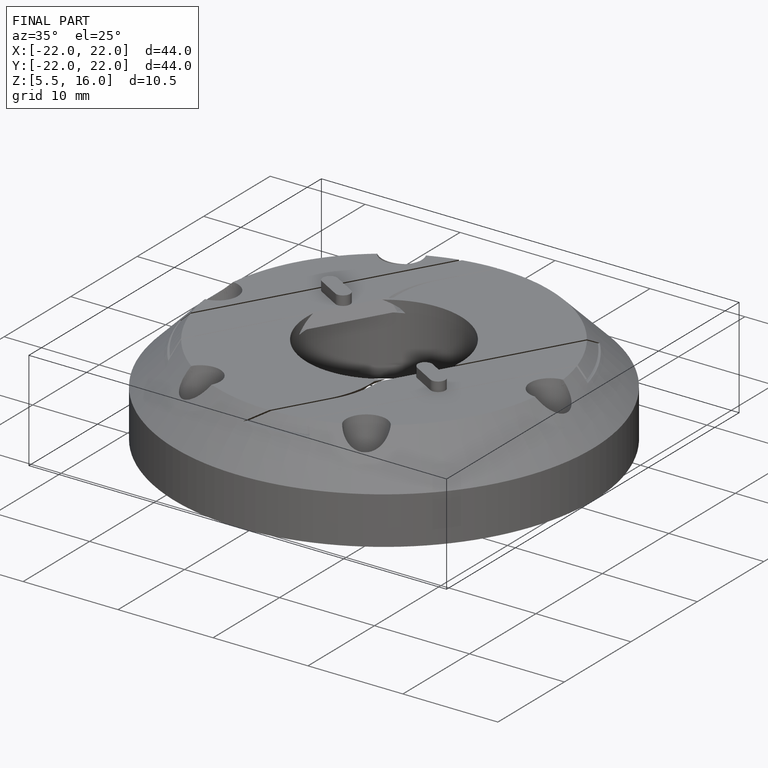
[diagram: finished part — iso view with bounding-box wireframe]
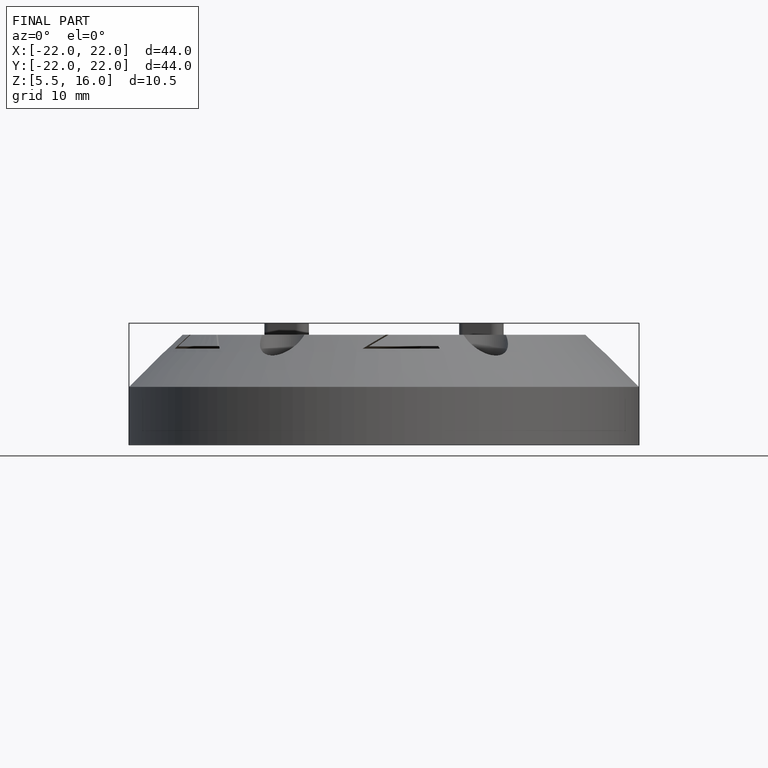
[diagram: finished part — front view with bounding-box wireframe]
